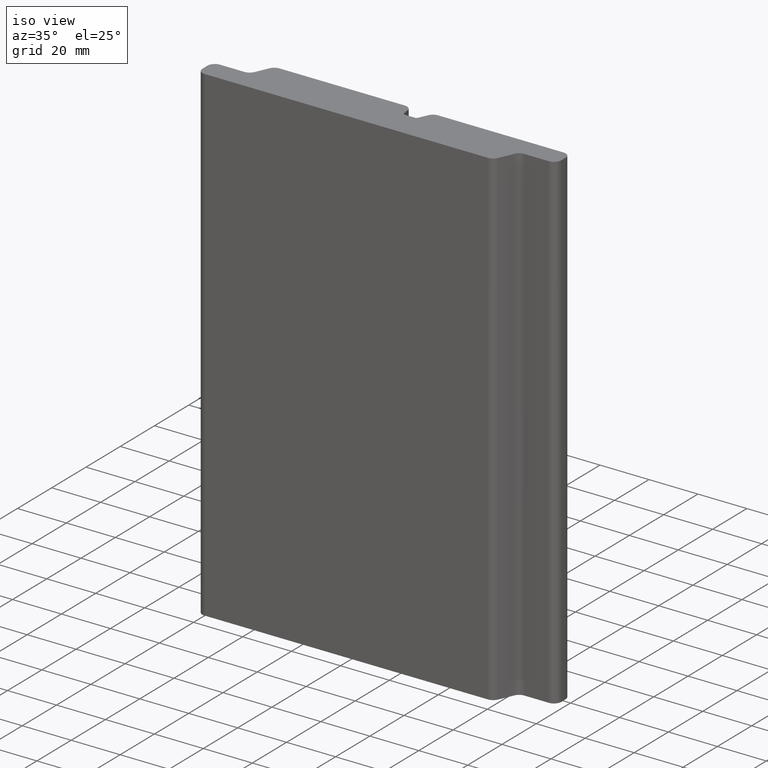
[diagram: clean part render]
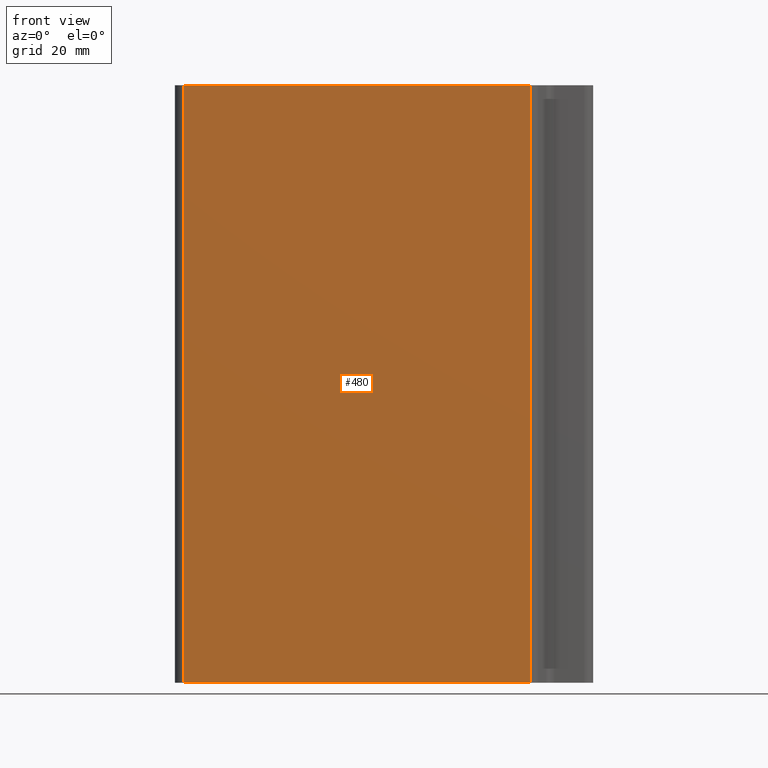
[diagram: tour spotlight — one face highlighted and labeled with its STEP entity id]
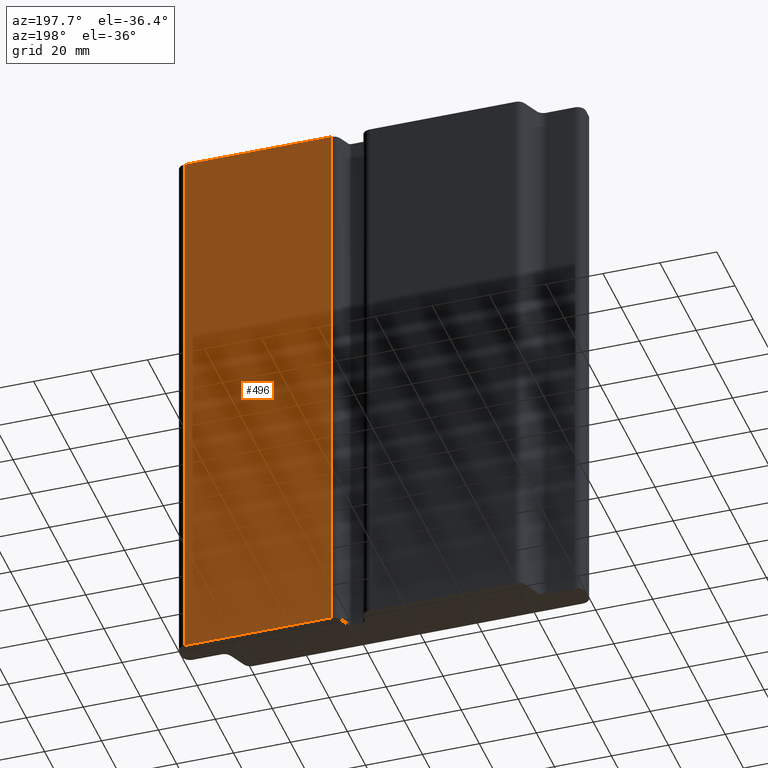
[diagram: tour spotlight — one face highlighted and labeled with its STEP entity id]
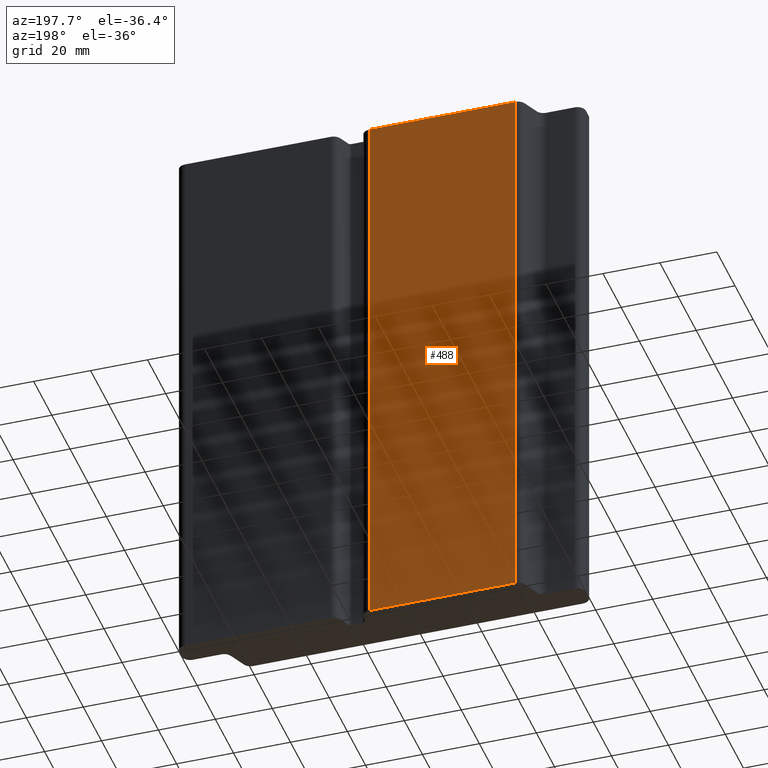
[diagram: tour spotlight — one face highlighted and labeled with its STEP entity id]
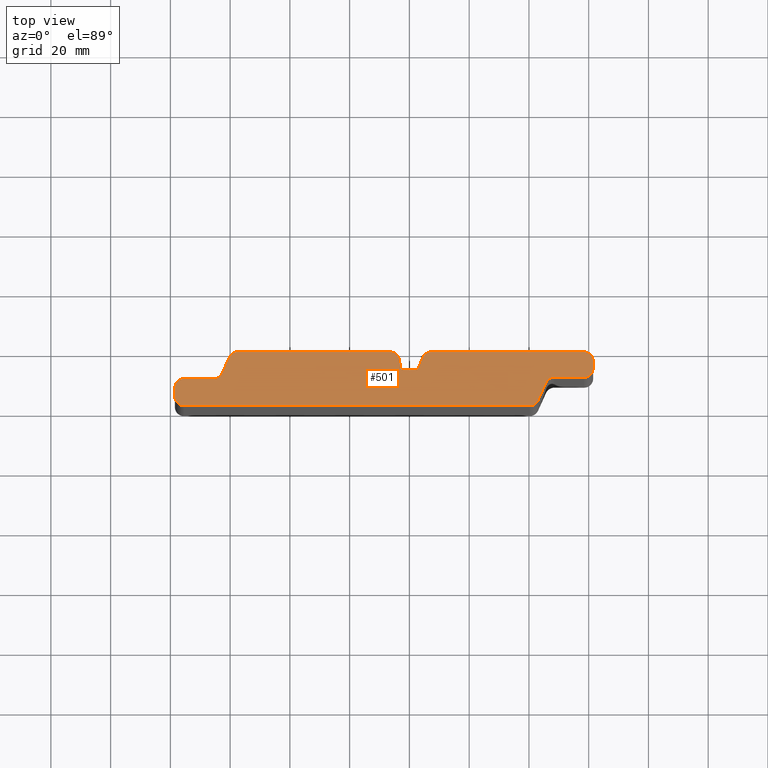
[diagram: tour spotlight — one face highlighted and labeled with its STEP entity id]
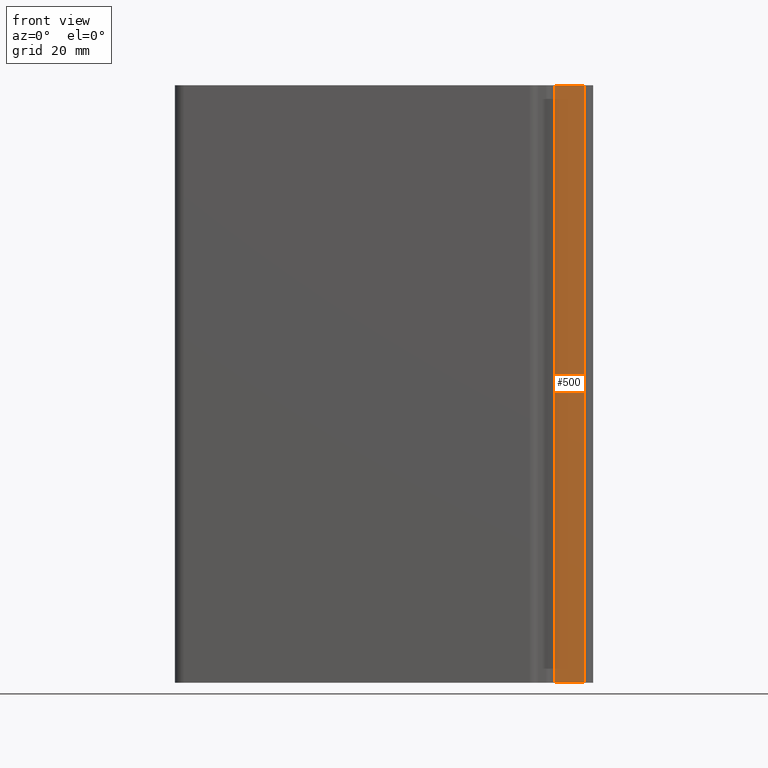
[diagram: tour spotlight — one face highlighted and labeled with its STEP entity id]
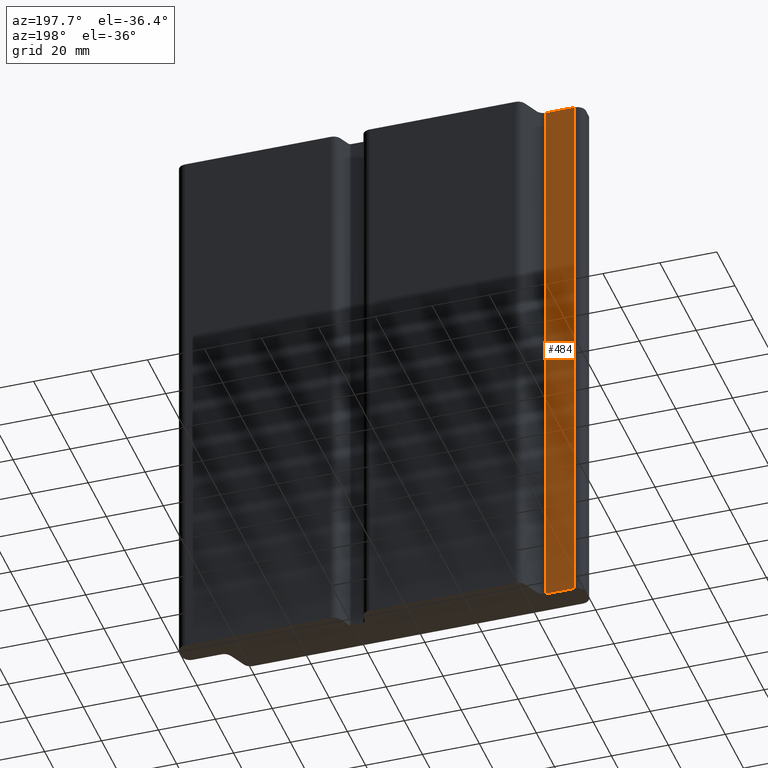
[diagram: tour spotlight — one face highlighted and labeled with its STEP entity id]
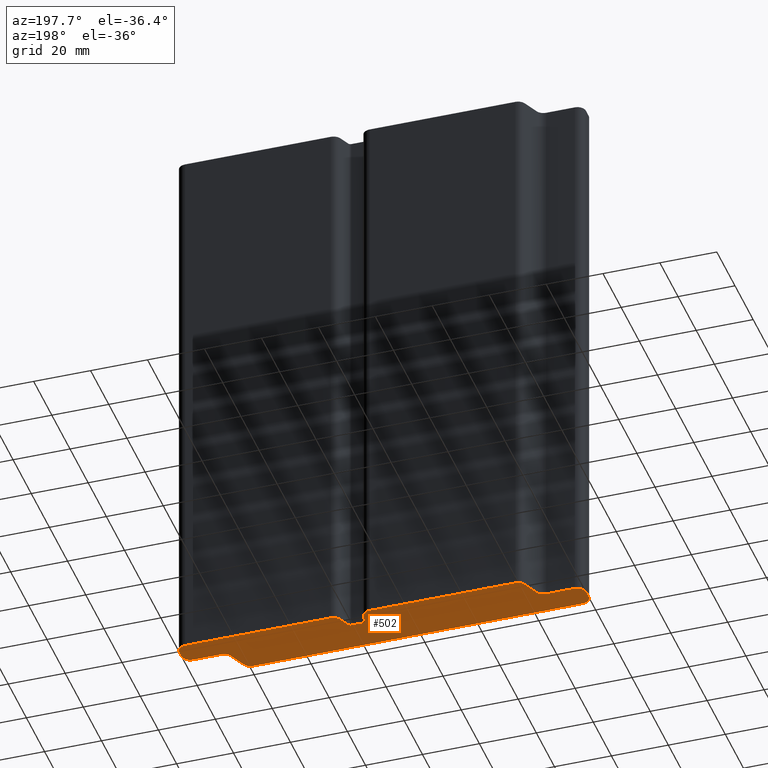
[diagram: tour spotlight — one face highlighted and labeled with its STEP entity id]
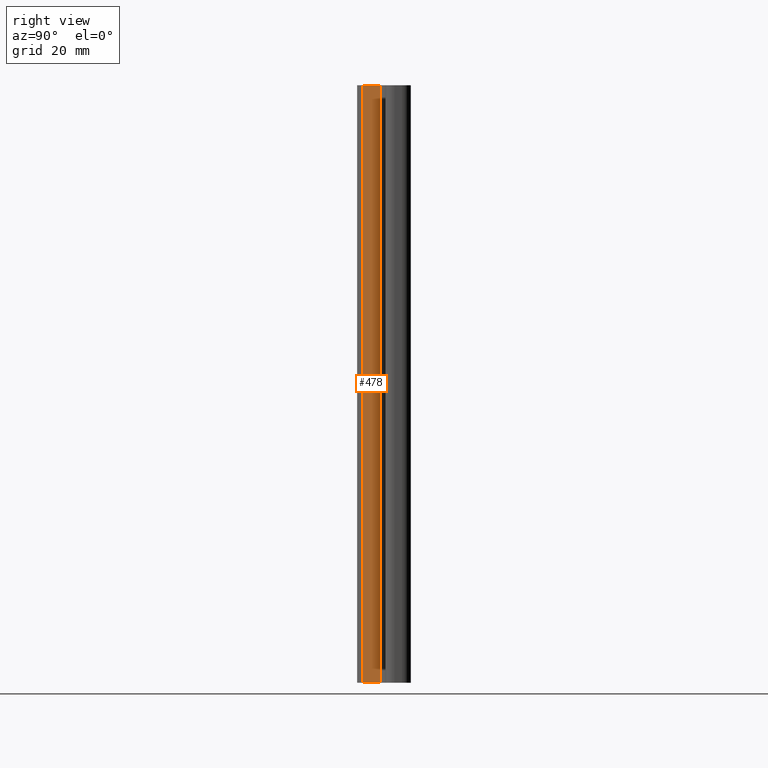
[diagram: tour spotlight — one face highlighted and labeled with its STEP entity id]
A machine part: a face-by-face anatomy tour. The part has 26 B-rep faces; the first image is the clean iso view, then the 8 largest visible faces are spotlighted one at a time (largest first), each with its STEP entity span.

Face 1 — front view, entity #480. In plain terms, the highlighted planar face has unit normal (0, -1, 0).
Definition (entity closure, byte-faithful):
#16=PLANE('',#524);
#32=FACE_OUTER_BOUND('',#58,.T.);
#58=EDGE_LOOP('',(#333,#334,#335,#336));
#86=LINE('',#738,#134);
#87=LINE('',#741,#135);
#88=LINE('',#743,#136);
#89=LINE('',#744,#137);
#134=VECTOR('',#588,10.);
#135=VECTOR('',#591,10.);
#136=VECTOR('',#592,10.);
#137=VECTOR('',#593,10.);
#207=VERTEX_POINT('',#734);
#208=VERTEX_POINT('',#736);
#209=VERTEX_POINT('',#740);
#210=VERTEX_POINT('',#742);
#258=EDGE_CURVE('',#207,#208,#86,.T.);
#259=EDGE_CURVE('',#209,#207,#87,.T.);
#260=EDGE_CURVE('',#210,#208,#88,.T.);
#261=EDGE_CURVE('',#209,#210,#89,.T.);
#333=ORIENTED_EDGE('',*,*,#259,.T.);
#334=ORIENTED_EDGE('',*,*,#258,.T.);
#335=ORIENTED_EDGE('',*,*,#260,.F.);
#336=ORIENTED_EDGE('',*,*,#261,.F.);
#480=ADVANCED_FACE('',(#32),#16,.T.);
#524=AXIS2_PLACEMENT_3D('',#739,#589,#590);
#588=DIRECTION('',(0.,0.,1.));
#589=DIRECTION('center_axis',(0.,-1.,0.));
#590=DIRECTION('ref_axis',(1.,0.,0.));
#591=DIRECTION('',(1.,0.,0.));
#592=DIRECTION('',(1.,0.,0.));
#593=DIRECTION('',(0.,0.,1.));
#734=CARTESIAN_POINT('',(40.3187702658953,0.,0.));
#736=CARTESIAN_POINT('',(40.3187702658953,0.,200.));
#738=CARTESIAN_POINT('',(40.3187702658953,0.,0.));
#739=CARTESIAN_POINT('Origin',(-75.5033344440489,7.29247740741524E-32,0.));
#740=CARTESIAN_POINT('',(-75.5033344440489,0.,0.));
#741=CARTESIAN_POINT('',(-75.5033344440489,7.29247740741524E-32,0.));
#742=CARTESIAN_POINT('',(-75.5033344440489,0.,200.));
#743=CARTESIAN_POINT('',(-75.5033344440489,7.29247740741524E-32,200.));
#744=CARTESIAN_POINT('',(-75.5033344440489,0.,0.));

Face 2 — auxiliary view, entity #496. In plain terms, the highlighted planar face has unit normal (0, 1, 0).
Definition (entity closure, byte-faithful):
#24=PLANE('',#556);
#48=FACE_OUTER_BOUND('',#74,.T.);
#74=EDGE_LOOP('',(#397,#398,#399,#400));
#118=LINE('',#834,#166);
#119=LINE('',#837,#167);
#120=LINE('',#839,#168);
#121=LINE('',#840,#169);
#166=VECTOR('',#684,10.);
#167=VECTOR('',#687,10.);
#168=VECTOR('',#688,10.);
#169=VECTOR('',#689,10.);
#239=VERTEX_POINT('',#830);
#240=VERTEX_POINT('',#832);
#241=VERTEX_POINT('',#836);
#242=VERTEX_POINT('',#838);
#306=EDGE_CURVE('',#239,#240,#118,.T.);
#307=EDGE_CURVE('',#241,#239,#119,.T.);
#308=EDGE_CURVE('',#242,#240,#120,.T.);
#309=EDGE_CURVE('',#241,#242,#121,.T.);
#397=ORIENTED_EDGE('',*,*,#307,.T.);
#398=ORIENTED_EDGE('',*,*,#306,.T.);
#399=ORIENTED_EDGE('',*,*,#308,.F.);
#400=ORIENTED_EDGE('',*,*,#309,.F.);
#496=ADVANCED_FACE('',(#48),#24,.T.);
#556=AXIS2_PLACEMENT_3D('',#835,#685,#686);
#684=DIRECTION('',(0.,0.,1.));
#685=DIRECTION('center_axis',(4.46450080602216E-14,1.,0.));
#686=DIRECTION('ref_axis',(-1.,4.46450080602216E-14,0.));
#687=DIRECTION('',(-1.,4.46450080602216E-14,0.));
#688=DIRECTION('',(-1.,4.46450080602216E-14,0.));
#689=DIRECTION('',(0.,0.,1.));
#830=CARTESIAN_POINT('',(7.26900248464049,18.0000000000702,0.));
#832=CARTESIAN_POINT('',(7.26900248464049,18.0000000000702,200.));
#834=CARTESIAN_POINT('',(7.26900248464049,18.0000000000702,0.));
#835=CARTESIAN_POINT('Origin',(58.4966655560148,18.0000000000679,0.));
#836=CARTESIAN_POINT('',(58.4966655560148,18.0000000000679,0.));
#837=CARTESIAN_POINT('',(58.4966655560148,18.0000000000679,0.));
#838=CARTESIAN_POINT('',(58.4966655560148,18.0000000000679,200.));
#839=CARTESIAN_POINT('',(58.4966655560148,18.0000000000679,200.));
#840=CARTESIAN_POINT('',(58.4966655560148,18.0000000000679,0.));

Face 3 — auxiliary view, entity #488. In plain terms, the highlighted planar face has unit normal (-0, 1, 0).
Definition (entity closure, byte-faithful):
#20=PLANE('',#540);
#40=FACE_OUTER_BOUND('',#66,.T.);
#66=EDGE_LOOP('',(#365,#366,#367,#368));
#102=LINE('',#786,#150);
#103=LINE('',#789,#151);
#104=LINE('',#791,#152);
#105=LINE('',#792,#153);
#150=VECTOR('',#636,10.);
#151=VECTOR('',#639,10.);
#152=VECTOR('',#640,10.);
#153=VECTOR('',#641,10.);
#223=VERTEX_POINT('',#782);
#224=VERTEX_POINT('',#784);
#225=VERTEX_POINT('',#788);
#226=VERTEX_POINT('',#790);
#282=EDGE_CURVE('',#223,#224,#102,.T.);
#283=EDGE_CURVE('',#223,#225,#103,.T.);
#284=EDGE_CURVE('',#226,#224,#104,.T.);
#285=EDGE_CURVE('',#225,#226,#105,.T.);
#365=ORIENTED_EDGE('',*,*,#283,.F.);
#366=ORIENTED_EDGE('',*,*,#282,.T.);
#367=ORIENTED_EDGE('',*,*,#284,.F.);
#368=ORIENTED_EDGE('',*,*,#285,.F.);
#488=ADVANCED_FACE('',(#40),#20,.T.);
#540=AXIS2_PLACEMENT_3D('',#787,#637,#638);
#636=DIRECTION('',(0.,0.,1.));
#637=DIRECTION('center_axis',(-1.79646311074164E-12,1.,0.));
#638=DIRECTION('ref_axis',(-1.,-1.79646311074164E-12,0.));
#639=DIRECTION('',(1.,1.79646311074164E-12,0.));
#640=DIRECTION('',(-1.,-1.79646311074164E-12,0.));
#641=DIRECTION('',(0.,0.,1.));
#782=CARTESIAN_POINT('',(-57.5480534966869,17.999999999954,0.));
#784=CARTESIAN_POINT('',(-57.5480534966869,17.999999999954,200.));
#786=CARTESIAN_POINT('',(-57.5480534966869,17.999999999954,0.));
#787=CARTESIAN_POINT('Origin',(-6.32039042531118,18.000000000046,0.));
#788=CARTESIAN_POINT('',(-6.32039042531118,18.0000000000458,0.));
#789=CARTESIAN_POINT('',(-57.5480534966869,17.999999999954,0.));
#790=CARTESIAN_POINT('',(-6.32039042531118,18.0000000000458,200.));
#791=CARTESIAN_POINT('',(-57.5480534966869,17.999999999954,200.));
#792=CARTESIAN_POINT('',(-6.32039042531118,18.0000000000458,0.));

Face 4 — top view, entity #501. In plain terms, the highlighted planar face has unit normal (0, 0, 1).
Definition (entity closure, byte-faithful):
#27=PLANE('',#565);
#53=FACE_OUTER_BOUND('',#79,.T.);
#79=EDGE_LOOP('',(#417,#418,#419,#420,#421,#422,#423,#424,#425,#426,#427,
#428,#429,#430,#431,#432,#433,#434,#435,#436,#437,#438,#439,#440));
#84=LINE('',#731,#132);
#88=LINE('',#743,#136);
#92=LINE('',#755,#140);
#96=LINE('',#767,#144);
#100=LINE('',#779,#148);
#104=LINE('',#791,#152);
#108=LINE('',#803,#156);
#112=LINE('',#815,#160);
#116=LINE('',#827,#164);
#120=LINE('',#839,#168);
#124=LINE('',#851,#172);
#128=LINE('',#861,#176);
#132=VECTOR('',#580,10.);
#136=VECTOR('',#592,10.);
#140=VECTOR('',#604,10.);
#144=VECTOR('',#616,10.);
#148=VECTOR('',#628,10.);
#152=VECTOR('',#640,10.);
#156=VECTOR('',#652,10.);
#160=VECTOR('',#664,10.);
#164=VECTOR('',#676,10.);
#168=VECTOR('',#688,10.);
#172=VECTOR('',#700,10.);
#176=VECTOR('',#712,10.);
#178=CIRCLE('',#519,2.99999999999913);
#180=CIRCLE('',#523,3.00000000000021);
#182=CIRCLE('',#527,3.0000000000364);
#184=CIRCLE('',#531,2.99999999998906);
#186=CIRCLE('',#535,3.00000000001392);
#188=CIRCLE('',#539,3.00000000003039);
#190=CIRCLE('',#543,2.99999978804394);
#192=CIRCLE('',#547,0.999998447068466);
#194=CIRCLE('',#551,1.00000000000156);
#196=CIRCLE('',#555,3.0000000000016);
#198=CIRCLE('',#559,2.9999999998975);
#200=CIRCLE('',#563,2.9999999999735);
#203=VERTEX_POINT('',#722);
#204=VERTEX_POINT('',#724);
#206=VERTEX_POINT('',#730);
#208=VERTEX_POINT('',#736);
#210=VERTEX_POINT('',#742);
#212=VERTEX_POINT('',#748);
#214=VERTEX_POINT('',#754);
#216=VERTEX_POINT('',#760);
#218=VERTEX_POINT('',#766);
#220=VERTEX_POINT('',#772);
#222=VERTEX_POINT('',#778);
#224=VERTEX_POINT('',#784);
#226=VERTEX_POINT('',#790);
#228=VERTEX_POINT('',#796);
#230=VERTEX_POINT('',#802);
#232=VERTEX_POINT('',#808);
#234=VERTEX_POINT('',#814);
#236=VERTEX_POINT('',#820);
#238=VERTEX_POINT('',#826);
#240=VERTEX_POINT('',#832);
#242=VERTEX_POINT('',#838);
#244=VERTEX_POINT('',#844);
#246=VERTEX_POINT('',#850);
#248=VERTEX_POINT('',#856);
#251=EDGE_CURVE('',#204,#203,#178,.T.);
#254=EDGE_CURVE('',#206,#204,#84,.T.);
#257=EDGE_CURVE('',#208,#206,#180,.T.);
#260=EDGE_CURVE('',#210,#208,#88,.T.);
#263=EDGE_CURVE('',#212,#210,#182,.T.);
#266=EDGE_CURVE('',#214,#212,#92,.T.);
#269=EDGE_CURVE('',#216,#214,#184,.T.);
#272=EDGE_CURVE('',#218,#216,#96,.T.);
#275=EDGE_CURVE('',#220,#218,#186,.T.);
#278=EDGE_CURVE('',#222,#220,#100,.T.);
#281=EDGE_CURVE('',#224,#222,#188,.T.);
#284=EDGE_CURVE('',#226,#224,#104,.T.);
#287=EDGE_CURVE('',#228,#226,#190,.T.);
#290=EDGE_CURVE('',#230,#228,#108,.T.);
#293=EDGE_CURVE('',#232,#230,#192,.T.);
#296=EDGE_CURVE('',#234,#232,#112,.T.);
#299=EDGE_CURVE('',#236,#234,#194,.T.);
#302=EDGE_CURVE('',#238,#236,#116,.T.);
#305=EDGE_CURVE('',#240,#238,#196,.T.);
#308=EDGE_CURVE('',#242,#240,#120,.T.);
#311=EDGE_CURVE('',#244,#242,#198,.T.);
#314=EDGE_CURVE('',#246,#244,#124,.T.);
#317=EDGE_CURVE('',#248,#246,#200,.T.);
#320=EDGE_CURVE('',#203,#248,#128,.T.);
#417=ORIENTED_EDGE('',*,*,#320,.T.);
#418=ORIENTED_EDGE('',*,*,#317,.T.);
#419=ORIENTED_EDGE('',*,*,#314,.T.);
#420=ORIENTED_EDGE('',*,*,#311,.T.);
#421=ORIENTED_EDGE('',*,*,#308,.T.);
#422=ORIENTED_EDGE('',*,*,#305,.T.);
#423=ORIENTED_EDGE('',*,*,#302,.T.);
#424=ORIENTED_EDGE('',*,*,#299,.T.);
#425=ORIENTED_EDGE('',*,*,#296,.T.);
#426=ORIENTED_EDGE('',*,*,#293,.T.);
#427=ORIENTED_EDGE('',*,*,#290,.T.);
#428=ORIENTED_EDGE('',*,*,#287,.T.);
#429=ORIENTED_EDGE('',*,*,#284,.T.);
#430=ORIENTED_EDGE('',*,*,#281,.T.);
#431=ORIENTED_EDGE('',*,*,#278,.T.);
#432=ORIENTED_EDGE('',*,*,#275,.T.);
#433=ORIENTED_EDGE('',*,*,#272,.T.);
#434=ORIENTED_EDGE('',*,*,#269,.T.);
#435=ORIENTED_EDGE('',*,*,#266,.T.);
#436=ORIENTED_EDGE('',*,*,#263,.T.);
#437=ORIENTED_EDGE('',*,*,#260,.T.);
#438=ORIENTED_EDGE('',*,*,#257,.T.);
#439=ORIENTED_EDGE('',*,*,#254,.T.);
#440=ORIENTED_EDGE('',*,*,#251,.T.);
#501=ADVANCED_FACE('',(#53),#27,.T.);
#519=AXIS2_PLACEMENT_3D('',#725,#574,#575);
#523=AXIS2_PLACEMENT_3D('',#737,#586,#587);
#527=AXIS2_PLACEMENT_3D('',#749,#598,#599);
#531=AXIS2_PLACEMENT_3D('',#761,#610,#611);
#535=AXIS2_PLACEMENT_3D('',#773,#622,#623);
#539=AXIS2_PLACEMENT_3D('',#785,#634,#635);
#543=AXIS2_PLACEMENT_3D('',#797,#646,#647);
#547=AXIS2_PLACEMENT_3D('',#809,#658,#659);
#551=AXIS2_PLACEMENT_3D('',#821,#670,#671);
#555=AXIS2_PLACEMENT_3D('',#833,#682,#683);
#559=AXIS2_PLACEMENT_3D('',#845,#694,#695);
#563=AXIS2_PLACEMENT_3D('',#857,#706,#707);
#565=AXIS2_PLACEMENT_3D('',#862,#713,#714);
#574=DIRECTION('center_axis',(0.,0.,-1.));
#575=DIRECTION('ref_axis',(0.,1.,0.));
#580=DIRECTION('',(0.406736643075813,0.913545457642595,0.));
#586=DIRECTION('center_axis',(0.,0.,1.));
#587=DIRECTION('ref_axis',(0.,-1.,0.));
#592=DIRECTION('',(1.,0.,0.));
#598=DIRECTION('center_axis',(0.,0.,1.));
#599=DIRECTION('ref_axis',(-1.,1.2952601953803E-15,0.));
#604=DIRECTION('',(7.60872846216231E-13,-1.,0.));
#610=DIRECTION('center_axis',(0.,0.,1.));
#611=DIRECTION('ref_axis',(0.,1.,0.));
#616=DIRECTION('',(-1.,0.,0.));
#622=DIRECTION('center_axis',(0.,0.,-1.));
#623=DIRECTION('ref_axis',(0.,-1.,0.));
#628=DIRECTION('',(-0.406736643075799,-0.913545457642602,0.));
#634=DIRECTION('center_axis',(0.,0.,1.));
#635=DIRECTION('ref_axis',(7.69754630398978E-13,1.,0.));
#640=DIRECTION('',(-1.,-1.79646311074164E-12,0.));
#646=DIRECTION('center_axis',(0.,0.,1.));
#647=DIRECTION('ref_axis',(0.990268068741106,0.139173100963373,0.));
#652=DIRECTION('',(-0.139173100963836,0.99026806874104,0.));
#658=DIRECTION('center_axis',(0.,0.,-1.));
#659=DIRECTION('ref_axis',(-0.990268068741164,-0.139173100962957,0.));
#664=DIRECTION('',(-1.,-1.38888900380546E-12,0.));
#670=DIRECTION('center_axis',(0.,0.,-1.));
#671=DIRECTION('ref_axis',(1.76914038973744E-12,-1.,0.));
#676=DIRECTION('',(-0.406736643075648,-0.913545457642668,0.));
#682=DIRECTION('center_axis',(0.,0.,1.));
#683=DIRECTION('ref_axis',(0.,1.,0.));
#688=DIRECTION('',(-1.,4.46450080602216E-14,0.));
#694=DIRECTION('center_axis',(0.,0.,1.));
#695=DIRECTION('ref_axis',(1.,0.,0.));
#700=DIRECTION('',(0.,1.,0.));
#706=DIRECTION('center_axis',(0.,0.,1.));
#707=DIRECTION('ref_axis',(0.,-1.,0.));
#712=DIRECTION('',(1.,0.,0.));
#713=DIRECTION('center_axis',(0.,0.,1.));
#714=DIRECTION('ref_axis',(1.,0.,0.));
#722=CARTESIAN_POINT('',(48.4448883355121,9.5,200.));
#724=CARTESIAN_POINT('',(45.7042519625851,7.72020992922793,200.));
#725=CARTESIAN_POINT('Origin',(48.4448883355121,6.50000000000087,200.));
#730=CARTESIAN_POINT('',(43.0594066388234,1.77979007077299,200.));
#731=CARTESIAN_POINT('',(43.0594066388242,1.77979007077266,200.));
#736=CARTESIAN_POINT('',(40.3187702658953,0.,200.));
#737=CARTESIAN_POINT('Origin',(40.3187702658953,3.00000000000021,200.));
#742=CARTESIAN_POINT('',(-75.5033344440489,0.,200.));
#743=CARTESIAN_POINT('',(-75.5033344440489,7.29247740741524E-32,200.));
#748=CARTESIAN_POINT('',(-78.5033344440853,3.0000000000364,200.));
#749=CARTESIAN_POINT('Origin',(-75.5033344440489,3.0000000000364,200.));
#754=CARTESIAN_POINT('',(-78.5033344440876,6.00000000001094,200.));
#755=CARTESIAN_POINT('',(-78.5033344440853,3.0000000000364,200.));
#760=CARTESIAN_POINT('',(-75.5033344440985,9.,200.));
#761=CARTESIAN_POINT('Origin',(-75.5033344440985,6.00000000001094,200.));
#766=CARTESIAN_POINT('',(-65.4515572236599,9.,200.));
#767=CARTESIAN_POINT('',(-75.5033344440985,9.,200.));
#772=CARTESIAN_POINT('',(-62.7109208507194,10.7797900707809,200.));
#773=CARTESIAN_POINT('Origin',(-65.4515572236599,12.0000000000139,200.));
#778=CARTESIAN_POINT('',(-60.2886898696447,16.2202099291634,200.));
#779=CARTESIAN_POINT('',(-62.7109208507193,10.7797900707809,200.));
#784=CARTESIAN_POINT('',(-57.5480534966869,17.999999999954,200.));
#785=CARTESIAN_POINT('Origin',(-57.5480534966892,14.9999999999236,200.));
#790=CARTESIAN_POINT('',(-6.32039042531118,18.0000000000458,200.));
#791=CARTESIAN_POINT('',(-57.5480534966869,17.999999999954,200.));
#796=CARTESIAN_POINT('',(-3.34958642897587,15.4175194853934,200.));
#797=CARTESIAN_POINT('Origin',(-6.32039042530587,15.0000002120018,200.));
#802=CARTESIAN_POINT('',(-2.99026653093443,12.8608255622897,200.));
#803=CARTESIAN_POINT('',(-3.34958642897587,15.4175194853934,200.));
#808=CARTESIAN_POINT('',(-2.0000000000102,12.0000000000579,200.));
#809=CARTESIAN_POINT('Origin',(-2.00000000001178,12.9999984471264,200.));
#814=CARTESIAN_POINT('',(1.99999999999157,12.0000000000626,200.));
#815=CARTESIAN_POINT('',(-2.0000000000102,12.000000000057,200.));
#820=CARTESIAN_POINT('',(2.91354545763382,12.5932633569877,200.));
#821=CARTESIAN_POINT('Origin',(1.9999999999898,13.0000000000641,200.));
#826=CARTESIAN_POINT('',(4.52836611171122,16.2202099292967,200.));
#827=CARTESIAN_POINT('',(2.91354545763775,12.593263356986,200.));
#832=CARTESIAN_POINT('',(7.26900248464049,18.0000000000702,200.));
#833=CARTESIAN_POINT('Origin',(7.26900248464049,15.0000000000686,200.));
#838=CARTESIAN_POINT('',(58.4966655560148,18.0000000000679,200.));
#839=CARTESIAN_POINT('',(58.4966655560148,18.0000000000679,200.));
#844=CARTESIAN_POINT('',(61.4966655559123,15.0000000001704,200.));
#845=CARTESIAN_POINT('Origin',(58.4966655560148,15.0000000001704,200.));
#850=CARTESIAN_POINT('',(61.4966655559123,12.4999999999735,200.));
#851=CARTESIAN_POINT('',(61.4966655559123,12.4999999999735,200.));
#856=CARTESIAN_POINT('',(58.4966655559388,9.5,200.));
#857=CARTESIAN_POINT('Origin',(58.4966655559388,12.4999999999735,200.));
#861=CARTESIAN_POINT('',(48.4448883355121,9.5,200.));
#862=CARTESIAN_POINT('Origin',(-8.50333444408761,9.00000000003511,200.));

Face 5 — front view, entity #500. In plain terms, the highlighted planar face has unit normal (0, -1, 0).
Definition (entity closure, byte-faithful):
#26=PLANE('',#564);
#52=FACE_OUTER_BOUND('',#78,.T.);
#78=EDGE_LOOP('',(#413,#414,#415,#416));
#81=LINE('',#723,#129);
#126=LINE('',#858,#174);
#127=LINE('',#860,#175);
#128=LINE('',#861,#176);
#129=VECTOR('',#573,10.);
#174=VECTOR('',#708,10.);
#175=VECTOR('',#711,10.);
#176=VECTOR('',#712,10.);
#201=VERTEX_POINT('',#719);
#203=VERTEX_POINT('',#722);
#247=VERTEX_POINT('',#854);
#248=VERTEX_POINT('',#856);
#250=EDGE_CURVE('',#201,#203,#81,.T.);
#318=EDGE_CURVE('',#247,#248,#126,.T.);
#319=EDGE_CURVE('',#201,#247,#127,.T.);
#320=EDGE_CURVE('',#203,#248,#128,.T.);
#413=ORIENTED_EDGE('',*,*,#319,.T.);
#414=ORIENTED_EDGE('',*,*,#318,.T.);
#415=ORIENTED_EDGE('',*,*,#320,.F.);
#416=ORIENTED_EDGE('',*,*,#250,.F.);
#500=ADVANCED_FACE('',(#52),#26,.T.);
#564=AXIS2_PLACEMENT_3D('',#859,#709,#710);
#573=DIRECTION('',(0.,0.,1.));
#708=DIRECTION('',(0.,0.,1.));
#709=DIRECTION('center_axis',(0.,-1.,0.));
#710=DIRECTION('ref_axis',(1.,0.,0.));
#711=DIRECTION('',(1.,0.,0.));
#712=DIRECTION('',(1.,0.,0.));
#719=CARTESIAN_POINT('',(48.4448883355121,9.5,0.));
#722=CARTESIAN_POINT('',(48.4448883355121,9.5,200.));
#723=CARTESIAN_POINT('',(48.4448883355121,9.5,0.));
#854=CARTESIAN_POINT('',(58.4966655559388,9.5,0.));
#856=CARTESIAN_POINT('',(58.4966655559388,9.5,200.));
#858=CARTESIAN_POINT('',(58.4966655559388,9.5,0.));
#859=CARTESIAN_POINT('Origin',(48.4448883355121,9.5,0.));
#860=CARTESIAN_POINT('',(48.4448883355121,9.5,0.));
#861=CARTESIAN_POINT('',(48.4448883355121,9.5,200.));

Face 6 — auxiliary view, entity #484. In plain terms, the highlighted planar face has unit normal (0, 1, 0).
Definition (entity closure, byte-faithful):
#18=PLANE('',#532);
#36=FACE_OUTER_BOUND('',#62,.T.);
#62=EDGE_LOOP('',(#349,#350,#351,#352));
#94=LINE('',#762,#142);
#95=LINE('',#765,#143);
#96=LINE('',#767,#144);
#97=LINE('',#768,#145);
#142=VECTOR('',#612,10.);
#143=VECTOR('',#615,10.);
#144=VECTOR('',#616,10.);
#145=VECTOR('',#617,10.);
#215=VERTEX_POINT('',#758);
#216=VERTEX_POINT('',#760);
#217=VERTEX_POINT('',#764);
#218=VERTEX_POINT('',#766);
#270=EDGE_CURVE('',#215,#216,#94,.T.);
#271=EDGE_CURVE('',#215,#217,#95,.T.);
#272=EDGE_CURVE('',#218,#216,#96,.T.);
#273=EDGE_CURVE('',#217,#218,#97,.T.);
#349=ORIENTED_EDGE('',*,*,#271,.F.);
#350=ORIENTED_EDGE('',*,*,#270,.T.);
#351=ORIENTED_EDGE('',*,*,#272,.F.);
#352=ORIENTED_EDGE('',*,*,#273,.F.);
#484=ADVANCED_FACE('',(#36),#18,.T.);
#532=AXIS2_PLACEMENT_3D('',#763,#613,#614);
#612=DIRECTION('',(0.,0.,1.));
#613=DIRECTION('center_axis',(0.,1.,0.));
#614=DIRECTION('ref_axis',(-1.,0.,0.));
#615=DIRECTION('',(1.,0.,0.));
#616=DIRECTION('',(-1.,0.,0.));
#617=DIRECTION('',(0.,0.,1.));
#758=CARTESIAN_POINT('',(-75.5033344440985,9.,0.));
#760=CARTESIAN_POINT('',(-75.5033344440985,9.,200.));
#762=CARTESIAN_POINT('',(-75.5033344440985,9.,0.));
#763=CARTESIAN_POINT('Origin',(-65.4515572236599,9.,0.));
#764=CARTESIAN_POINT('',(-65.4515572236599,9.,0.));
#765=CARTESIAN_POINT('',(-75.5033344440985,9.,0.));
#766=CARTESIAN_POINT('',(-65.4515572236599,9.,200.));
#767=CARTESIAN_POINT('',(-75.5033344440985,9.,200.));
#768=CARTESIAN_POINT('',(-65.4515572236599,9.,0.));

Face 7 — auxiliary view, entity #502. In plain terms, the highlighted planar face has unit normal (0, 0, 1).
Definition (entity closure, byte-faithful):
#28=PLANE('',#566);
#54=FACE_OUTER_BOUND('',#80,.T.);
#80=EDGE_LOOP('',(#441,#442,#443,#444,#445,#446,#447,#448,#449,#450,#451,
#452,#453,#454,#455,#456,#457,#458,#459,#460,#461,#462,#463,#464));
#83=LINE('',#729,#131);
#87=LINE('',#741,#135);
#91=LINE('',#753,#139);
#95=LINE('',#765,#143);
#99=LINE('',#777,#147);
#103=LINE('',#789,#151);
#107=LINE('',#801,#155);
#111=LINE('',#813,#159);
#115=LINE('',#825,#163);
#119=LINE('',#837,#167);
#123=LINE('',#849,#171);
#127=LINE('',#860,#175);
#131=VECTOR('',#579,10.);
#135=VECTOR('',#591,10.);
#139=VECTOR('',#603,10.);
#143=VECTOR('',#615,10.);
#147=VECTOR('',#627,10.);
#151=VECTOR('',#639,10.);
#155=VECTOR('',#651,10.);
#159=VECTOR('',#663,10.);
#163=VECTOR('',#675,10.);
#167=VECTOR('',#687,10.);
#171=VECTOR('',#699,10.);
#175=VECTOR('',#711,10.);
#177=CIRCLE('',#518,2.99999999999913);
#179=CIRCLE('',#522,3.00000000000021);
#181=CIRCLE('',#526,3.0000000000364);
#183=CIRCLE('',#530,2.99999999998906);
#185=CIRCLE('',#534,3.00000000001392);
#187=CIRCLE('',#538,3.00000000003039);
#189=CIRCLE('',#542,2.99999978804394);
#191=CIRCLE('',#546,0.999998447068466);
#193=CIRCLE('',#550,1.00000000000156);
#195=CIRCLE('',#554,3.0000000000016);
#197=CIRCLE('',#558,2.9999999998975);
#199=CIRCLE('',#562,2.9999999999735);
#201=VERTEX_POINT('',#719);
#202=VERTEX_POINT('',#720);
#205=VERTEX_POINT('',#728);
#207=VERTEX_POINT('',#734);
#209=VERTEX_POINT('',#740);
#211=VERTEX_POINT('',#746);
#213=VERTEX_POINT('',#752);
#215=VERTEX_POINT('',#758);
#217=VERTEX_POINT('',#764);
#219=VERTEX_POINT('',#770);
#221=VERTEX_POINT('',#776);
#223=VERTEX_POINT('',#782);
#225=VERTEX_POINT('',#788);
#227=VERTEX_POINT('',#794);
#229=VERTEX_POINT('',#800);
#231=VERTEX_POINT('',#806);
#233=VERTEX_POINT('',#812);
#235=VERTEX_POINT('',#818);
#237=VERTEX_POINT('',#824);
#239=VERTEX_POINT('',#830);
#241=VERTEX_POINT('',#836);
#243=VERTEX_POINT('',#842);
#245=VERTEX_POINT('',#848);
#247=VERTEX_POINT('',#854);
#249=EDGE_CURVE('',#201,#202,#177,.T.);
#253=EDGE_CURVE('',#205,#202,#83,.T.);
#256=EDGE_CURVE('',#207,#205,#179,.T.);
#259=EDGE_CURVE('',#209,#207,#87,.T.);
#262=EDGE_CURVE('',#211,#209,#181,.T.);
#265=EDGE_CURVE('',#211,#213,#91,.T.);
#268=EDGE_CURVE('',#215,#213,#183,.T.);
#271=EDGE_CURVE('',#215,#217,#95,.T.);
#274=EDGE_CURVE('',#217,#219,#185,.T.);
#277=EDGE_CURVE('',#219,#221,#99,.T.);
#280=EDGE_CURVE('',#223,#221,#187,.T.);
#283=EDGE_CURVE('',#223,#225,#103,.T.);
#286=EDGE_CURVE('',#227,#225,#189,.T.);
#289=EDGE_CURVE('',#227,#229,#107,.T.);
#292=EDGE_CURVE('',#229,#231,#191,.T.);
#295=EDGE_CURVE('',#231,#233,#111,.T.);
#298=EDGE_CURVE('',#233,#235,#193,.T.);
#301=EDGE_CURVE('',#235,#237,#115,.T.);
#304=EDGE_CURVE('',#239,#237,#195,.T.);
#307=EDGE_CURVE('',#241,#239,#119,.T.);
#310=EDGE_CURVE('',#243,#241,#197,.T.);
#313=EDGE_CURVE('',#245,#243,#123,.T.);
#316=EDGE_CURVE('',#247,#245,#199,.T.);
#319=EDGE_CURVE('',#201,#247,#127,.T.);
#441=ORIENTED_EDGE('',*,*,#319,.F.);
#442=ORIENTED_EDGE('',*,*,#249,.T.);
#443=ORIENTED_EDGE('',*,*,#253,.F.);
#444=ORIENTED_EDGE('',*,*,#256,.F.);
#445=ORIENTED_EDGE('',*,*,#259,.F.);
#446=ORIENTED_EDGE('',*,*,#262,.F.);
#447=ORIENTED_EDGE('',*,*,#265,.T.);
#448=ORIENTED_EDGE('',*,*,#268,.F.);
#449=ORIENTED_EDGE('',*,*,#271,.T.);
#450=ORIENTED_EDGE('',*,*,#274,.T.);
#451=ORIENTED_EDGE('',*,*,#277,.T.);
#452=ORIENTED_EDGE('',*,*,#280,.F.);
#453=ORIENTED_EDGE('',*,*,#283,.T.);
#454=ORIENTED_EDGE('',*,*,#286,.F.);
#455=ORIENTED_EDGE('',*,*,#289,.T.);
#456=ORIENTED_EDGE('',*,*,#292,.T.);
#457=ORIENTED_EDGE('',*,*,#295,.T.);
#458=ORIENTED_EDGE('',*,*,#298,.T.);
#459=ORIENTED_EDGE('',*,*,#301,.T.);
#460=ORIENTED_EDGE('',*,*,#304,.F.);
#461=ORIENTED_EDGE('',*,*,#307,.F.);
#462=ORIENTED_EDGE('',*,*,#310,.F.);
#463=ORIENTED_EDGE('',*,*,#313,.F.);
#464=ORIENTED_EDGE('',*,*,#316,.F.);
#502=ADVANCED_FACE('',(#54),#28,.F.);
#518=AXIS2_PLACEMENT_3D('',#721,#571,#572);
#522=AXIS2_PLACEMENT_3D('',#735,#584,#585);
#526=AXIS2_PLACEMENT_3D('',#747,#596,#597);
#530=AXIS2_PLACEMENT_3D('',#759,#608,#609);
#534=AXIS2_PLACEMENT_3D('',#771,#620,#621);
#538=AXIS2_PLACEMENT_3D('',#783,#632,#633);
#542=AXIS2_PLACEMENT_3D('',#795,#644,#645);
#546=AXIS2_PLACEMENT_3D('',#807,#656,#657);
#550=AXIS2_PLACEMENT_3D('',#819,#668,#669);
#554=AXIS2_PLACEMENT_3D('',#831,#680,#681);
#558=AXIS2_PLACEMENT_3D('',#843,#692,#693);
#562=AXIS2_PLACEMENT_3D('',#855,#704,#705);
#566=AXIS2_PLACEMENT_3D('',#863,#715,#716);
#571=DIRECTION('center_axis',(0.,0.,1.));
#572=DIRECTION('ref_axis',(0.,1.,0.));
#579=DIRECTION('',(0.406736643075813,0.913545457642595,0.));
#584=DIRECTION('center_axis',(0.,0.,1.));
#585=DIRECTION('ref_axis',(0.,-1.,0.));
#591=DIRECTION('',(1.,0.,0.));
#596=DIRECTION('center_axis',(0.,0.,1.));
#597=DIRECTION('ref_axis',(-1.,1.2952601953803E-15,0.));
#603=DIRECTION('',(-7.60872846216231E-13,1.,0.));
#608=DIRECTION('center_axis',(0.,0.,1.));
#609=DIRECTION('ref_axis',(0.,1.,0.));
#615=DIRECTION('',(1.,0.,0.));
#620=DIRECTION('center_axis',(0.,0.,1.));
#621=DIRECTION('ref_axis',(0.,-1.,0.));
#627=DIRECTION('',(0.406736643075799,0.913545457642602,0.));
#632=DIRECTION('center_axis',(0.,0.,1.));
#633=DIRECTION('ref_axis',(7.69754630398978E-13,1.,0.));
#639=DIRECTION('',(1.,1.79646311074164E-12,0.));
#644=DIRECTION('center_axis',(0.,0.,1.));
#645=DIRECTION('ref_axis',(0.990268068741106,0.139173100963373,0.));
#651=DIRECTION('',(0.139173100963836,-0.99026806874104,0.));
#656=DIRECTION('center_axis',(0.,0.,1.));
#657=DIRECTION('ref_axis',(-0.990268068741164,-0.139173100962957,0.));
#663=DIRECTION('',(1.,1.38888900380546E-12,0.));
#668=DIRECTION('center_axis',(0.,0.,1.));
#669=DIRECTION('ref_axis',(1.76914038973744E-12,-1.,0.));
#675=DIRECTION('',(0.406736643075648,0.913545457642668,0.));
#680=DIRECTION('center_axis',(0.,0.,1.));
#681=DIRECTION('ref_axis',(0.,1.,0.));
#687=DIRECTION('',(-1.,4.46450080602216E-14,0.));
#692=DIRECTION('center_axis',(0.,0.,1.));
#693=DIRECTION('ref_axis',(1.,0.,0.));
#699=DIRECTION('',(0.,1.,0.));
#704=DIRECTION('center_axis',(0.,0.,1.));
#705=DIRECTION('ref_axis',(0.,-1.,0.));
#711=DIRECTION('',(1.,0.,0.));
#715=DIRECTION('center_axis',(0.,0.,1.));
#716=DIRECTION('ref_axis',(1.,0.,0.));
#719=CARTESIAN_POINT('',(48.4448883355121,9.5,0.));
#720=CARTESIAN_POINT('',(45.7042519625851,7.72020992922793,0.));
#721=CARTESIAN_POINT('Origin',(48.4448883355121,6.50000000000087,0.));
#728=CARTESIAN_POINT('',(43.0594066388234,1.77979007077299,0.));
#729=CARTESIAN_POINT('',(43.0594066388242,1.77979007077266,0.));
#734=CARTESIAN_POINT('',(40.3187702658953,0.,0.));
#735=CARTESIAN_POINT('Origin',(40.3187702658953,3.00000000000021,0.));
#740=CARTESIAN_POINT('',(-75.5033344440489,0.,0.));
#741=CARTESIAN_POINT('',(-75.5033344440489,7.29247740741524E-32,0.));
#746=CARTESIAN_POINT('',(-78.5033344440853,3.0000000000364,0.));
#747=CARTESIAN_POINT('Origin',(-75.5033344440489,3.0000000000364,0.));
#752=CARTESIAN_POINT('',(-78.5033344440876,6.00000000001094,0.));
#753=CARTESIAN_POINT('',(-78.5033344440853,3.0000000000364,0.));
#758=CARTESIAN_POINT('',(-75.5033344440985,9.,0.));
#759=CARTESIAN_POINT('Origin',(-75.5033344440985,6.00000000001094,0.));
#764=CARTESIAN_POINT('',(-65.4515572236599,9.,0.));
#765=CARTESIAN_POINT('',(-75.5033344440985,9.,0.));
#770=CARTESIAN_POINT('',(-62.7109208507193,10.7797900707809,0.));
#771=CARTESIAN_POINT('Origin',(-65.4515572236599,12.0000000000139,0.));
#776=CARTESIAN_POINT('',(-60.2886898696447,16.2202099291634,0.));
#777=CARTESIAN_POINT('',(-62.7109208507193,10.7797900707809,0.));
#782=CARTESIAN_POINT('',(-57.5480534966869,17.999999999954,0.));
#783=CARTESIAN_POINT('Origin',(-57.5480534966892,14.9999999999236,0.));
#788=CARTESIAN_POINT('',(-6.32039042531118,18.0000000000458,0.));
#789=CARTESIAN_POINT('',(-57.5480534966869,17.999999999954,0.));
#794=CARTESIAN_POINT('',(-3.34958642897587,15.4175194853934,0.));
#795=CARTESIAN_POINT('Origin',(-6.32039042530587,15.0000002120018,0.));
#800=CARTESIAN_POINT('',(-2.99026653093443,12.8608255622897,0.));
#801=CARTESIAN_POINT('',(-3.34958642897587,15.4175194853934,0.));
#806=CARTESIAN_POINT('',(-2.0000000000102,12.0000000000579,0.));
#807=CARTESIAN_POINT('Origin',(-2.00000000001178,12.9999984471264,0.));
#812=CARTESIAN_POINT('',(1.99999999999157,12.0000000000626,0.));
#813=CARTESIAN_POINT('',(-2.0000000000102,12.000000000057,0.));
#818=CARTESIAN_POINT('',(2.91354545763382,12.5932633569877,0.));
#819=CARTESIAN_POINT('Origin',(1.9999999999898,13.0000000000641,0.));
#824=CARTESIAN_POINT('',(4.52836611171122,16.2202099292967,0.));
#825=CARTESIAN_POINT('',(2.91354545763775,12.593263356986,0.));
#830=CARTESIAN_POINT('',(7.26900248464049,18.0000000000702,0.));
#831=CARTESIAN_POINT('Origin',(7.26900248464049,15.0000000000686,0.));
#836=CARTESIAN_POINT('',(58.4966655560148,18.0000000000679,0.));
#837=CARTESIAN_POINT('',(58.4966655560148,18.0000000000679,0.));
#842=CARTESIAN_POINT('',(61.4966655559123,15.0000000001704,0.));
#843=CARTESIAN_POINT('Origin',(58.4966655560148,15.0000000001704,0.));
#848=CARTESIAN_POINT('',(61.4966655559123,12.4999999999735,0.));
#849=CARTESIAN_POINT('',(61.4966655559123,12.4999999999735,0.));
#854=CARTESIAN_POINT('',(58.4966655559388,9.5,0.));
#855=CARTESIAN_POINT('Origin',(58.4966655559388,12.4999999999735,0.));
#860=CARTESIAN_POINT('',(48.4448883355121,9.5,0.));
#863=CARTESIAN_POINT('Origin',(-8.50333444408761,9.00000000003511,0.));

Face 8 — right view, entity #478. In plain terms, the highlighted planar face has unit normal (0.9135, -0.4067, 0).
Definition (entity closure, byte-faithful):
#15=PLANE('',#520);
#30=FACE_OUTER_BOUND('',#56,.T.);
#56=EDGE_LOOP('',(#325,#326,#327,#328));
#82=LINE('',#726,#130);
#83=LINE('',#729,#131);
#84=LINE('',#731,#132);
#85=LINE('',#732,#133);
#130=VECTOR('',#576,10.);
#131=VECTOR('',#579,10.);
#132=VECTOR('',#580,10.);
#133=VECTOR('',#581,10.);
#202=VERTEX_POINT('',#720);
#204=VERTEX_POINT('',#724);
#205=VERTEX_POINT('',#728);
#206=VERTEX_POINT('',#730);
#252=EDGE_CURVE('',#202,#204,#82,.T.);
#253=EDGE_CURVE('',#205,#202,#83,.T.);
#254=EDGE_CURVE('',#206,#204,#84,.T.);
#255=EDGE_CURVE('',#205,#206,#85,.T.);
#325=ORIENTED_EDGE('',*,*,#253,.T.);
#326=ORIENTED_EDGE('',*,*,#252,.T.);
#327=ORIENTED_EDGE('',*,*,#254,.F.);
#328=ORIENTED_EDGE('',*,*,#255,.F.);
#478=ADVANCED_FACE('',(#30),#15,.T.);
#520=AXIS2_PLACEMENT_3D('',#727,#577,#578);
#576=DIRECTION('',(0.,0.,1.));
#577=DIRECTION('center_axis',(0.913545457642595,-0.406736643075813,0.));
#578=DIRECTION('ref_axis',(0.406736643075813,0.913545457642595,0.));
#579=DIRECTION('',(0.406736643075813,0.913545457642595,0.));
#580=DIRECTION('',(0.406736643075813,0.913545457642595,0.));
#581=DIRECTION('',(0.,0.,1.));
#720=CARTESIAN_POINT('',(45.7042519625851,7.72020992922793,0.));
#724=CARTESIAN_POINT('',(45.7042519625851,7.72020992922793,200.));
#726=CARTESIAN_POINT('',(45.7042519625851,7.72020992922793,0.));
#727=CARTESIAN_POINT('Origin',(43.0594066388242,1.77979007077266,0.));
#728=CARTESIAN_POINT('',(43.0594066388234,1.77979007077299,0.));
#729=CARTESIAN_POINT('',(43.0594066388242,1.77979007077266,0.));
#730=CARTESIAN_POINT('',(43.0594066388234,1.77979007077299,200.));
#731=CARTESIAN_POINT('',(43.0594066388242,1.77979007077266,200.));
#732=CARTESIAN_POINT('',(43.0594066388234,1.77979007077299,0.));